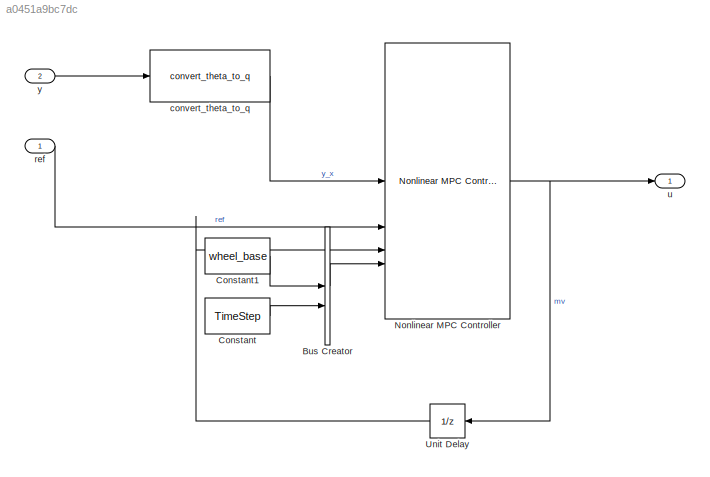
MODEL slx_a0451a9bc7dc
KIND model
BLOCK [BusCreator] Bus Creator
  DisplayOption = bar
  InheritFromInputs = off
  Inputs = 2
  OutDataTypeStr = Bus: NLMPC_param_bus
BLOCK [Constant] Constant
  Value = TimeStep
BLOCK [Constant] Constant1
  Value = wheel_base
BLOCK [Reference] Nonlinear MPC Controller  REF=mpclib/Nonlinear MPC Controller  (lib defined in mdl_ae329e0e0455)
  SCDEnableBlockLinearizationSpecification = on
  SourceBlock = mpclib/Nonlinear MPC Controller
  SourceType = NonlinearMPC
BLOCK [UnitDelay] Unit Delay
  HasFrameUpgradeWarning = on
  InitialCondition = u0
  SampleTime = -1
BLOCK [Reference] convert_theta_to_q  REF=nl_vehicle_MPC_lib/convert_theta_to_q
  SourceBlock = nl_vehicle_MPC_lib/convert_theta_to_q
BLOCK [Inport] ref
  OutDataTypeStr = double
  PortDimensions = [refNum, 4]
  SamplingMode = Sample based
  SignalType = real
BLOCK [Outport] u
  OutDataTypeStr = double
  PortDimensions = 2
  SamplingMode = Sample based
  SignalType = real
BLOCK [Inport] y
  OutDataTypeStr = double
  Port = 2
  PortDimensions = 3
  SamplingMode = Sample based
  SignalType = real
LINE Bus Creator:1 -> Nonlinear MPC Controller:4
LINE Constant1:1 -> Bus Creator:1
LINE Constant:1 -> Bus Creator:2
NET Nonlinear MPC Controller:1 -> Unit Delay:1, u:1
LINE Unit Delay:1 -> Nonlinear MPC Controller:3
LINE convert_theta_to_q:1 -> Nonlinear MPC Controller:1
LINE ref:1 -> Nonlinear MPC Controller:2
LINE y:1 -> convert_theta_to_q:1
note: NET lines group one-source signal fan-out (src -> all destinations, sorted); 1:1 wires keep LINE
